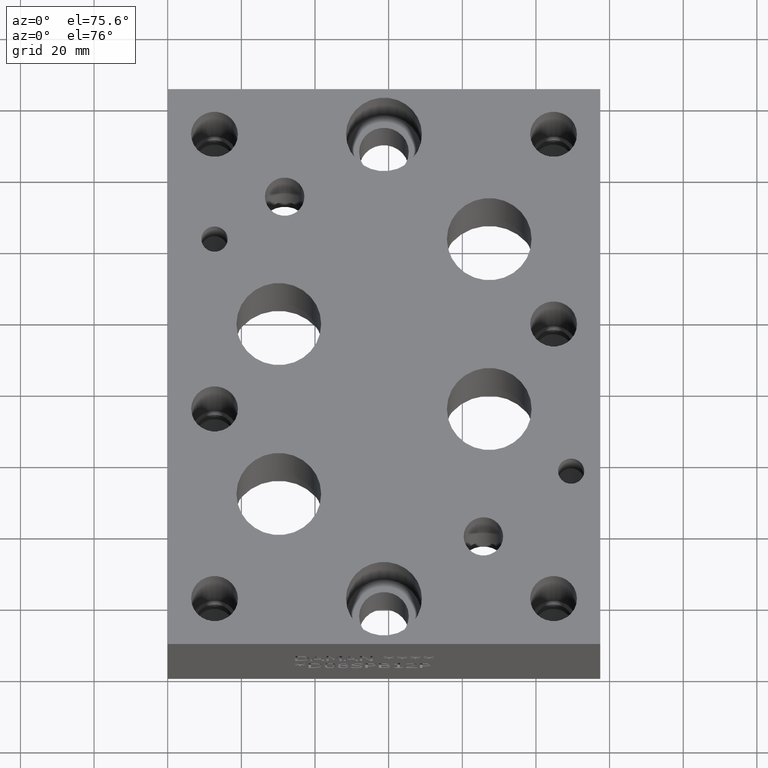
[diagram: clean part render]
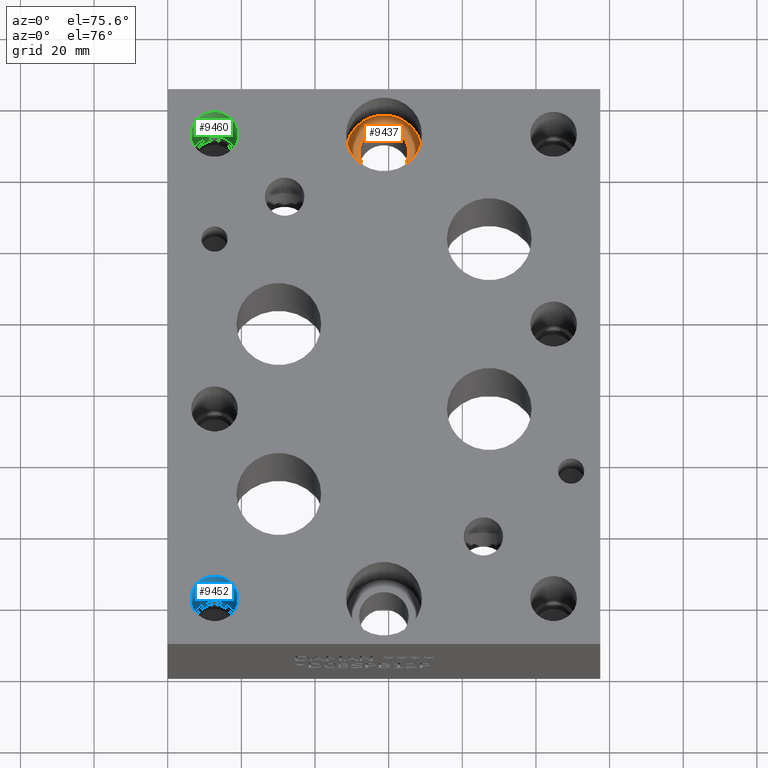
[diagram: same view with three faces highlighted in distinct colors, each labeled with its STEP entity id]
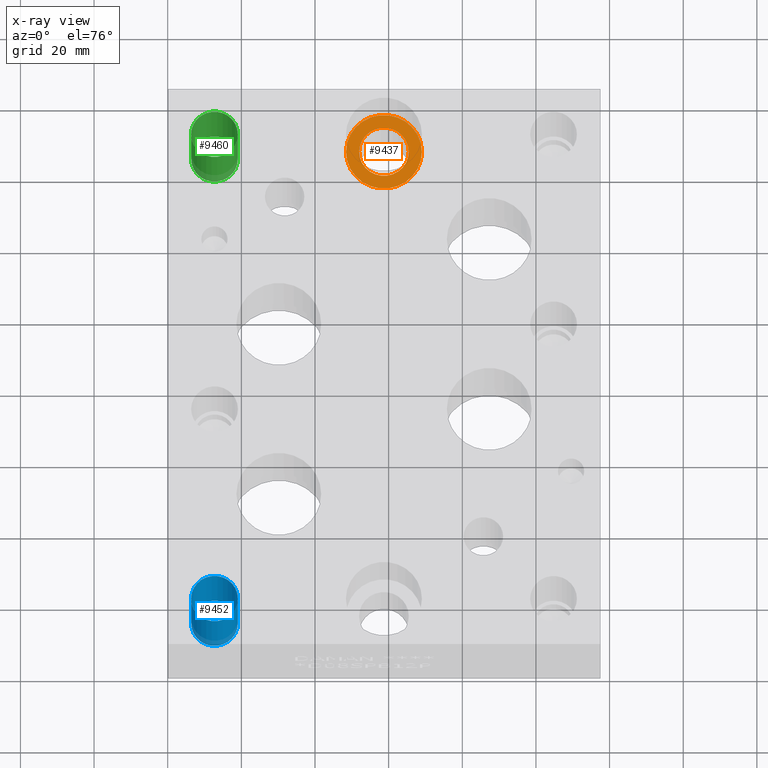
[diagram: x-ray of the same camera — body ghosted, the three highlighted faces saturated]
A machine part, auxiliary view with three faces highlighted in distinct colors.
The next image is the same camera in x-ray (body ghosted, the three faces saturated) — at least one of them is partly hidden behind the body in this view.
Their STEP definitions:

[orange] entity #9437 — the highlighted planar face has unit normal (0, 0, 1).
#89=CIRCLE('',#9840,10.3124);
#90=CIRCLE('',#9841,10.3124);
#91=CIRCLE('',#9842,6.7437);
#211=FACE_BOUND('',#1516,.T.);
#534=PLANE('',#9839);
#982=FACE_OUTER_BOUND('',#1515,.T.);
#1515=EDGE_LOOP('',(#8244,#8245));
#1516=EDGE_LOOP('',(#8246));
#4510=VERTEX_POINT('',#15880);
#4511=VERTEX_POINT('',#15881);
#4512=VERTEX_POINT('',#15884);
#5779=EDGE_CURVE('',#4510,#4511,#89,.T.);
#5780=EDGE_CURVE('',#4511,#4510,#90,.T.);
#5781=EDGE_CURVE('',#4512,#4512,#91,.T.);
#8244=ORIENTED_EDGE('',*,*,#5779,.T.);
#8245=ORIENTED_EDGE('',*,*,#5780,.T.);
#8246=ORIENTED_EDGE('',*,*,#5781,.F.);
#9437=ADVANCED_FACE('',(#982,#211),#534,.T.);
#9839=AXIS2_PLACEMENT_3D('',#15879,#11542,#11543);
#9840=AXIS2_PLACEMENT_3D('',#15882,#11544,#11545);
#9841=AXIS2_PLACEMENT_3D('',#15883,#11546,#11547);
#9842=AXIS2_PLACEMENT_3D('',#15885,#11548,#11549);
#11542=DIRECTION('center_axis',(0.,0.,1.));
#11543=DIRECTION('ref_axis',(1.,0.,0.));
#11544=DIRECTION('center_axis',(0.,0.,1.));
#11545=DIRECTION('ref_axis',(1.,0.,0.));
#11546=DIRECTION('center_axis',(0.,0.,1.));
#11547=DIRECTION('ref_axis',(1.,0.,0.));
#11548=DIRECTION('center_axis',(0.,0.,1.));
#11549=DIRECTION('ref_axis',(1.,0.,0.));
#15879=CARTESIAN_POINT('Origin',(58.7248,142.875,19.05));
#15880=CARTESIAN_POINT('',(69.0372,142.875,19.05));
#15881=CARTESIAN_POINT('',(48.4124,142.875,19.05));
#15882=CARTESIAN_POINT('Origin',(58.7248,142.875,19.05));
#15883=CARTESIAN_POINT('Origin',(58.7248,142.875,19.05));
#15884=CARTESIAN_POINT('',(51.9811,142.875,19.05));
#15885=CARTESIAN_POINT('Origin',(58.7248,142.875,19.05));

[blue] entity #9452 — the highlighted cylindrical surface (bore or boss wall) has radius 6.35 mm, axis along (0, 0, 1).
#40=CYLINDRICAL_SURFACE('',#9884,6.35);
#116=CIRCLE('',#9881,6.35);
#117=CIRCLE('',#9882,6.35);
#119=CIRCLE('',#9885,6.35);
#120=CIRCLE('',#9886,6.35);
#997=FACE_OUTER_BOUND('',#1532,.T.);
#1532=EDGE_LOOP('',(#8314,#8315,#8316,#8317,#8318,#8319));
#2495=LINE('',#15975,#3431);
#3431=VECTOR('',#11651,6.35);
#4540=VERTEX_POINT('',#15964);
#4541=VERTEX_POINT('',#15965);
#4543=VERTEX_POINT('',#15971);
#4544=VERTEX_POINT('',#15972);
#5819=EDGE_CURVE('',#4540,#4541,#116,.T.);
#5820=EDGE_CURVE('',#4541,#4540,#117,.T.);
#5822=EDGE_CURVE('',#4543,#4544,#119,.T.);
#5823=EDGE_CURVE('',#4544,#4543,#120,.T.);
#5824=EDGE_CURVE('',#4544,#4541,#2495,.T.);
#8314=ORIENTED_EDGE('',*,*,#5822,.F.);
#8315=ORIENTED_EDGE('',*,*,#5823,.F.);
#8316=ORIENTED_EDGE('',*,*,#5824,.T.);
#8317=ORIENTED_EDGE('',*,*,#5819,.F.);
#8318=ORIENTED_EDGE('',*,*,#5820,.F.);
#8319=ORIENTED_EDGE('',*,*,#5824,.F.);
#9452=ADVANCED_FACE('',(#997),#40,.F.);
#9881=AXIS2_PLACEMENT_3D('',#15966,#11639,#11640);
#9882=AXIS2_PLACEMENT_3D('',#15967,#11641,#11642);
#9884=AXIS2_PLACEMENT_3D('',#15970,#11645,#11646);
#9885=AXIS2_PLACEMENT_3D('',#15973,#11647,#11648);
#9886=AXIS2_PLACEMENT_3D('',#15974,#11649,#11650);
#11639=DIRECTION('center_axis',(0.,0.,1.));
#11640=DIRECTION('ref_axis',(1.,0.,0.));
#11641=DIRECTION('center_axis',(0.,0.,1.));
#11642=DIRECTION('ref_axis',(1.,0.,0.));
#11645=DIRECTION('center_axis',(0.,0.,1.));
#11646=DIRECTION('ref_axis',(1.,0.,0.));
#11647=DIRECTION('center_axis',(0.,0.,-1.));
#11648=DIRECTION('ref_axis',(1.,0.,0.));
#11649=DIRECTION('center_axis',(0.,0.,-1.));
#11650=DIRECTION('ref_axis',(1.,0.,0.));
#11651=DIRECTION('',(0.,0.,-1.));
#15964=CARTESIAN_POINT('',(19.0627,12.70762,11.176));
#15965=CARTESIAN_POINT('',(6.3627,12.70762,11.176));
#15966=CARTESIAN_POINT('Origin',(12.7127,12.70762,11.176));
#15967=CARTESIAN_POINT('Origin',(12.7127,12.70762,11.176));
#15970=CARTESIAN_POINT('Origin',(12.7127,12.70762,24.638));
#15971=CARTESIAN_POINT('',(19.0627,12.70762,38.1));
#15972=CARTESIAN_POINT('',(6.3627,12.70762,38.1));
#15973=CARTESIAN_POINT('Origin',(12.7127,12.70762,38.1));
#15974=CARTESIAN_POINT('Origin',(12.7127,12.70762,38.1));
#15975=CARTESIAN_POINT('',(6.3627,12.70762,24.638));

[green] entity #9460 — the highlighted cylindrical surface (bore or boss wall) has radius 6.35 mm, axis along (0, 0, 1).
#44=CYLINDRICAL_SURFACE('',#9906,6.35);
#130=CIRCLE('',#9903,6.35);
#131=CIRCLE('',#9904,6.35);
#133=CIRCLE('',#9907,6.35);
#134=CIRCLE('',#9908,6.35);
#1005=FACE_OUTER_BOUND('',#1542,.T.);
#1542=EDGE_LOOP('',(#8350,#8351,#8352,#8353,#8354,#8355));
#2501=LINE('',#16019,#3437);
#3437=VECTOR('',#11701,6.35);
#4556=VERTEX_POINT('',#16008);
#4557=VERTEX_POINT('',#16009);
#4559=VERTEX_POINT('',#16015);
#4560=VERTEX_POINT('',#16016);
#5839=EDGE_CURVE('',#4556,#4557,#130,.T.);
#5840=EDGE_CURVE('',#4557,#4556,#131,.T.);
#5842=EDGE_CURVE('',#4559,#4560,#133,.T.);
#5843=EDGE_CURVE('',#4560,#4559,#134,.T.);
#5844=EDGE_CURVE('',#4560,#4557,#2501,.T.);
#8350=ORIENTED_EDGE('',*,*,#5842,.F.);
#8351=ORIENTED_EDGE('',*,*,#5843,.F.);
#8352=ORIENTED_EDGE('',*,*,#5844,.T.);
#8353=ORIENTED_EDGE('',*,*,#5839,.F.);
#8354=ORIENTED_EDGE('',*,*,#5840,.F.);
#8355=ORIENTED_EDGE('',*,*,#5844,.F.);
#9460=ADVANCED_FACE('',(#1005),#44,.F.);
#9903=AXIS2_PLACEMENT_3D('',#16010,#11689,#11690);
#9904=AXIS2_PLACEMENT_3D('',#16011,#11691,#11692);
#9906=AXIS2_PLACEMENT_3D('',#16014,#11695,#11696);
#9907=AXIS2_PLACEMENT_3D('',#16017,#11697,#11698);
#9908=AXIS2_PLACEMENT_3D('',#16018,#11699,#11700);
#11689=DIRECTION('center_axis',(0.,0.,1.));
#11690=DIRECTION('ref_axis',(1.,0.,0.));
#11691=DIRECTION('center_axis',(0.,0.,1.));
#11692=DIRECTION('ref_axis',(1.,0.,0.));
#11695=DIRECTION('center_axis',(0.,0.,1.));
#11696=DIRECTION('ref_axis',(1.,0.,0.));
#11697=DIRECTION('center_axis',(0.,0.,-1.));
#11698=DIRECTION('ref_axis',(1.,0.,0.));
#11699=DIRECTION('center_axis',(0.,0.,-1.));
#11700=DIRECTION('ref_axis',(1.,0.,0.));
#11701=DIRECTION('',(0.,0.,-1.));
#16008=CARTESIAN_POINT('',(19.05,142.875,11.176));
#16009=CARTESIAN_POINT('',(6.35,142.875,11.176));
#16010=CARTESIAN_POINT('Origin',(12.7,142.875,11.176));
#16011=CARTESIAN_POINT('Origin',(12.7,142.875,11.176));
#16014=CARTESIAN_POINT('Origin',(12.7,142.875,24.638));
#16015=CARTESIAN_POINT('',(19.05,142.875,38.1));
#16016=CARTESIAN_POINT('',(6.35,142.875,38.1));
#16017=CARTESIAN_POINT('Origin',(12.7,142.875,38.1));
#16018=CARTESIAN_POINT('Origin',(12.7,142.875,38.1));
#16019=CARTESIAN_POINT('',(6.35,142.875,24.638));